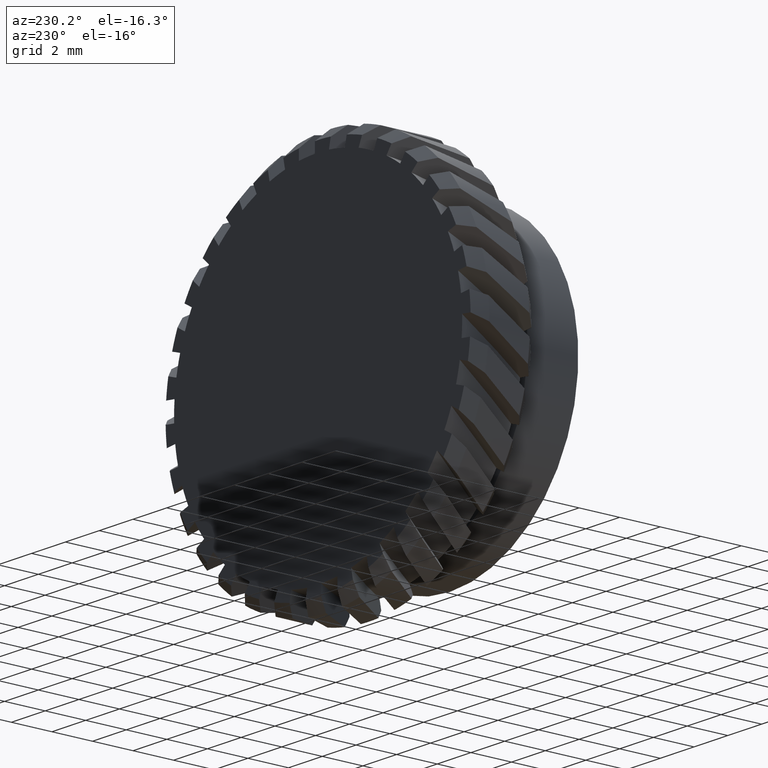
[diagram: clean part render]
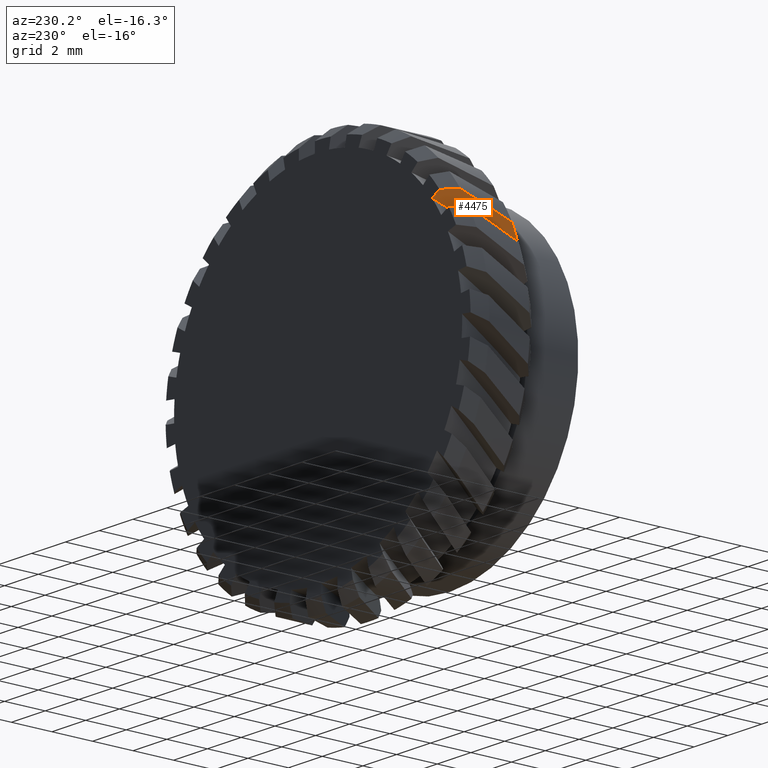
[diagram: same view with one face highlighted and labeled with its STEP entity id]
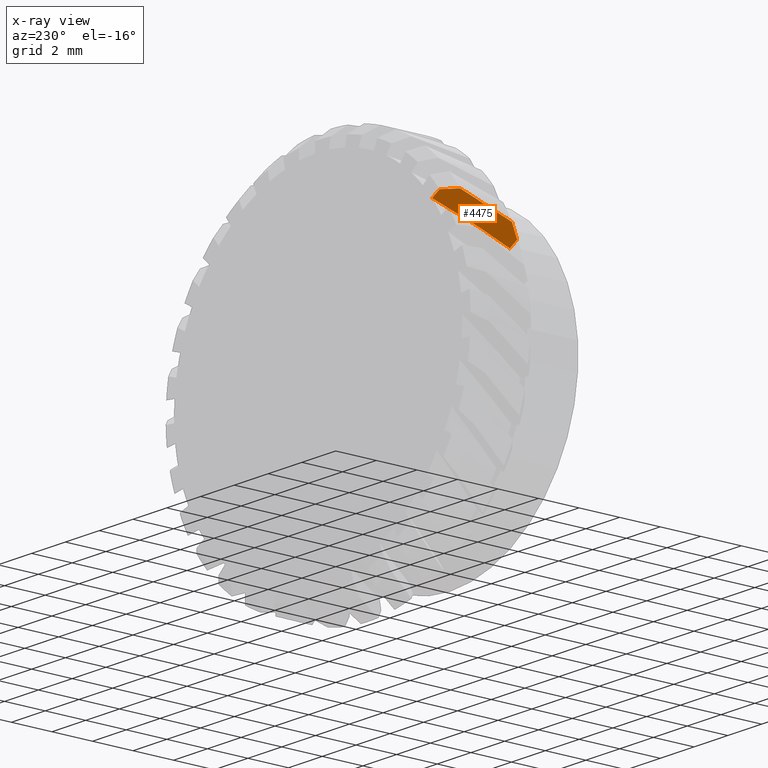
[diagram: x-ray of the same camera — body ghosted, the highlighted face saturated]
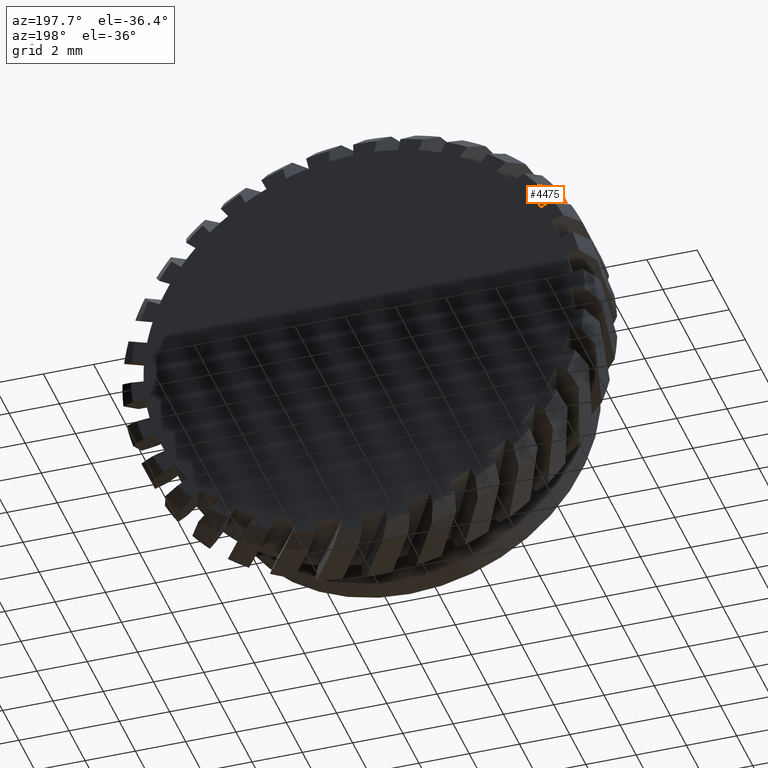
[diagram: same view with one face highlighted and labeled with its STEP entity id]
A machine part, auxiliary view. The second image highlights one B-rep face of the part: STEP entity #4475.
The next image is the same camera in x-ray: the body ghosted, the highlighted face saturated — about 0% of this face is hidden behind the body in this view.
A second angle (auxiliary view) of the same face is appended — the face is thin or edge-on in the first view.
In plain terms, the highlighted planar face has unit normal (0.4206, -0.5408, 0.7285).
Its self-contained STEP definition (entity closure, byte-faithful):
#3 = EDGE_CURVE ( 'NONE', #2935, #466, #2451, .T. ) ;
#37 = CARTESIAN_POINT ( 'NONE',  ( -7.192380849683342300, 20.69265181520477600, 4.592430940963041100 ) ) ;
#69 = CARTESIAN_POINT ( 'NONE',  ( -8.473156021493967000, 19.37125740523060800, 4.351005864788124500 ) ) ;
#87 = VERTEX_POINT ( 'NONE', #5344 ) ;
#327 = EDGE_CURVE ( 'NONE', #7403, #7305, #3775, .T. ) ;
#332 = CARTESIAN_POINT ( 'NONE',  ( -7.809866277267477000, 21.37125740523061900, 5.452670330324432200 ) ) ;
#466 = VERTEX_POINT ( 'NONE', #946 ) ;
#491 = ORIENTED_EDGE ( 'NONE', *, *, #327, .F. ) ;
#493 = CARTESIAN_POINT ( 'NONE',  ( -7.382866567262294000, 20.10002958273694100, 4.262500000000088100 ) ) ;
#515 = CARTESIAN_POINT ( 'NONE',  ( -7.514757178160540900, 19.68970323772018500, 4.034058760883035600 ) ) ;
#622 = CARTESIAN_POINT ( 'NONE',  ( -6.747392696804605600, 21.87125740523061900, 5.210404667116360900 ) ) ;
#757 = ORIENTED_EDGE ( 'NONE', *, *, #5881, .T. ) ;
#881 = CARTESIAN_POINT ( 'NONE',  ( -7.809866277267477000, 21.37125740523061900, 5.452670330324432200 ) ) ;
#899 = CARTESIAN_POINT ( 'NONE',  ( -7.393580651561140200, 21.70569147912626900, 5.460580629878614400 ) ) ;
#946 = CARTESIAN_POINT ( 'NONE',  ( -7.184100655918245000, 21.87125740523061900, 5.462538124867882600 ) ) ;
#1348 = ORIENTED_EDGE ( 'NONE', *, *, #5568, .F. ) ;
#1620 = CARTESIAN_POINT ( 'NONE',  ( -8.277054073853360400, 20.03824349520654700, 4.732895122149219700 ) ) ;
#1901 = PLANE ( 'NONE',  #7463 ) ;
#2076 = DIRECTION ( 'NONE',  ( 0.2703787956567556000, 0.8411784753765524400, 0.4683098113667714100 ) ) ;
#2302 = CARTESIAN_POINT ( 'NONE',  ( -7.809866277267477000, 21.37125740523061900, 5.452670330324432200 ) ) ;
#2419 = CARTESIAN_POINT ( 'NONE',  ( -7.746066664921557700, 18.87125740523061500, 3.560066884567073300 ) ) ;
#2451 = LINE ( 'NONE', #3454, #4427 ) ;
#2691 = DIRECTION ( 'NONE',  ( 0.8660254037844328200, 0.0000000000000000000, -0.5000000000000101000 ) ) ;
#2750 = CARTESIAN_POINT ( 'NONE',  ( -7.602139974200532000, 21.53896771910542500, 5.457232115295750100 ) ) ;
#2786 =( BOUNDED_CURVE ( )  B_SPLINE_CURVE ( 3, ( #6186, #37, #5575, #622 ),
 .UNSPECIFIED., .F., .T. ) 
 B_SPLINE_CURVE_WITH_KNOTS ( ( 4, 4 ),
 ( 4.712388980384689700, 4.846354899233878300 ),
 .UNSPECIFIED. ) 
 CURVE ( )  GEOMETRIC_REPRESENTATION_ITEM ( )  RATIONAL_B_SPLINE_CURVE ( ( 1.000000000000000000, 0.9985049868160654800, 0.9985049868160654800, 1.000000000000000000 ) ) 
 REPRESENTATION_ITEM ( '' )  );
#2830 = EDGE_LOOP ( 'NONE', ( #5123, #491, #757, #1348, #7229, #3687, #5374 ) ) ;
#2903 = B_SPLINE_CURVE_WITH_KNOTS ( 'NONE', 3,
 ( #881, #2750, #899, #3274 ),
 .UNSPECIFIED., .F., .F.,
 ( 4, 4 ),
 ( 3.184173117726859000E-007, 0.0008013677205582868500 ),
 .UNSPECIFIED. ) ;
#2935 = VERTEX_POINT ( 'NONE', #7285 ) ;
#3216 = CARTESIAN_POINT ( 'NONE',  ( -8.180846035670754200, 18.87125740523061900, 3.811086871307232100 ) ) ;
#3274 = CARTESIAN_POINT ( 'NONE',  ( -7.184100655918245000, 21.87125740523061900, 5.462538124867882600 ) ) ;
#3454 = CARTESIAN_POINT ( 'NONE',  ( 0.5693232286586975600, 21.87125740523061900, 0.9860967579659912800 ) ) ;
#3687 = ORIENTED_EDGE ( 'NONE', *, *, #3, .F. ) ;
#3775 = LINE ( 'NONE', #3838, #4051 ) ;
#3838 = CARTESIAN_POINT ( 'NONE',  ( -0.3949624856270408900, 18.87125740523061900, -0.6840950921897088800 ) ) ;
#3904 = VERTEX_POINT ( 'NONE', #69 ) ;
#4051 = VECTOR ( 'NONE', #2691, 1000.000000000000000 ) ;
#4106 = CARTESIAN_POINT ( 'NONE',  ( -7.635910794834953400, 19.27981845428203700, 3.799746289727197200 ) ) ;
#4427 = VECTOR ( 'NONE', #5191, 1000.000000000000000 ) ;
#4475 = ADVANCED_FACE ( 'NONE', ( #6720 ), #1901, .F. ) ;
#4687 = CARTESIAN_POINT ( 'NONE',  ( -8.180846035670754200, 18.87125740523061900, 3.811086871307232100 ) ) ;
#5123 = ORIENTED_EDGE ( 'NONE', *, *, #7438, .F. ) ;
#5156 = DIRECTION ( 'NONE',  ( 0.4205892376882847700, -0.5407575913135004300, 0.7284819287927524200 ) ) ;
#5191 = DIRECTION ( 'NONE',  ( -0.8660254037844328200, 0.0000000000000000000, 0.5000000000000101000 ) ) ;
#5264 = EDGE_CURVE ( 'NONE', #87, #2935, #2786, .T. ) ;
#5330 = B_SPLINE_CURVE_WITH_KNOTS ( 'NONE', 3,
 ( #3216, #6303, #6836, #6948 ),
 .UNSPECIFIED., .F., .F.,
 ( 4, 4 ),
 ( 3.185892975204454600E-007, 0.0007921251612160432000 ),
 .UNSPECIFIED. ) ;
#5344 = CARTESIAN_POINT ( 'NONE',  ( -7.382866567262294000, 20.10002958273694100, 4.262500000000088100 ) ) ;
#5359 = CARTESIAN_POINT ( 'NONE',  ( -7.746066664921557700, 18.87125740523061500, 3.560066884567073300 ) ) ;
#5374 = ORIENTED_EDGE ( 'NONE', *, *, #5264, .F. ) ;
#5568 = EDGE_CURVE ( 'NONE', #7729, #3904, #7094, .T. ) ;
#5575 = CARTESIAN_POINT ( 'NONE',  ( -6.980239071442111900, 21.28394508059666600, 4.908872247259986400 ) ) ;
#5582 = CARTESIAN_POINT ( 'NONE',  ( 9.140313803422293000, 22.87064764887129400, -3.220512095349516500 ) ) ;
#5881 = EDGE_CURVE ( 'NONE', #7403, #3904, #5330, .T. ) ;
#6186 = CARTESIAN_POINT ( 'NONE',  ( -7.382866567262294000, 20.10002958273694100, 4.262500000000088100 ) ) ;
#6303 = CARTESIAN_POINT ( 'NONE',  ( -8.279736179200165600, 19.03694428573474100, 3.991171734514455500 ) ) ;
#6311 =( BOUNDED_CURVE ( )  B_SPLINE_CURVE ( 3, ( #2419, #4106, #515, #493 ),
 .UNSPECIFIED., .F., .T. ) 
 B_SPLINE_CURVE_WITH_KNOTS ( ( 4, 4 ),
 ( 4.619596051014035300, 4.712388980384689700 ),
 .UNSPECIFIED. ) 
 CURVE ( )  GEOMETRIC_REPRESENTATION_ITEM ( )  RATIONAL_B_SPLINE_CURVE ( ( 1.000000000000000000, 0.9992825847296723500, 0.9992825847296723500, 1.000000000000000000 ) ) 
 REPRESENTATION_ITEM ( '' )  );
#6440 = EDGE_CURVE ( 'NONE', #7729, #466, #2903, .T. ) ;
#6522 = CARTESIAN_POINT ( 'NONE',  ( -8.055620777456102400, 20.70592544966066500, 5.100675863900190300 ) ) ;
#6573 = CARTESIAN_POINT ( 'NONE',  ( -8.473156021493967000, 19.37125740523060800, 4.351005864788124500 ) ) ;
#6720 = FACE_OUTER_BOUND ( 'NONE', #2830, .T. ) ;
#6836 = CARTESIAN_POINT ( 'NONE',  ( -8.377112783672021800, 19.20366105625519600, 4.171147250611296500 ) ) ;
#6948 = CARTESIAN_POINT ( 'NONE',  ( -8.473156021493967000, 19.37125740523060800, 4.351005864788124500 ) ) ;
#7094 =( BOUNDED_CURVE ( )  B_SPLINE_CURVE ( 3, ( #2302, #6522, #1620, #6573 ),
 .UNSPECIFIED., .F., .T. ) 
 B_SPLINE_CURVE_WITH_KNOTS ( ( 4, 4 ),
 ( 1.484893562231942400, 1.620002154428315200 ),
 .UNSPECIFIED. ) 
 CURVE ( )  GEOMETRIC_REPRESENTATION_ITEM ( )  RATIONAL_B_SPLINE_CURVE ( ( 1.000000000000000000, 0.9984793841129278000, 0.9984793841129278000, 1.000000000000000000 ) ) 
 REPRESENTATION_ITEM ( '' )  );
#7229 = ORIENTED_EDGE ( 'NONE', *, *, #6440, .T. ) ;
#7285 = CARTESIAN_POINT ( 'NONE',  ( -6.747392696804605600, 21.87125740523061900, 5.210404667116360900 ) ) ;
#7305 = VERTEX_POINT ( 'NONE', #5359 ) ;
#7403 = VERTEX_POINT ( 'NONE', #4687 ) ;
#7438 = EDGE_CURVE ( 'NONE', #7305, #87, #6311, .T. ) ;
#7463 = AXIS2_PLACEMENT_3D ( 'NONE', #5582, #5156, #2076 ) ;
#7729 = VERTEX_POINT ( 'NONE', #332 ) ;